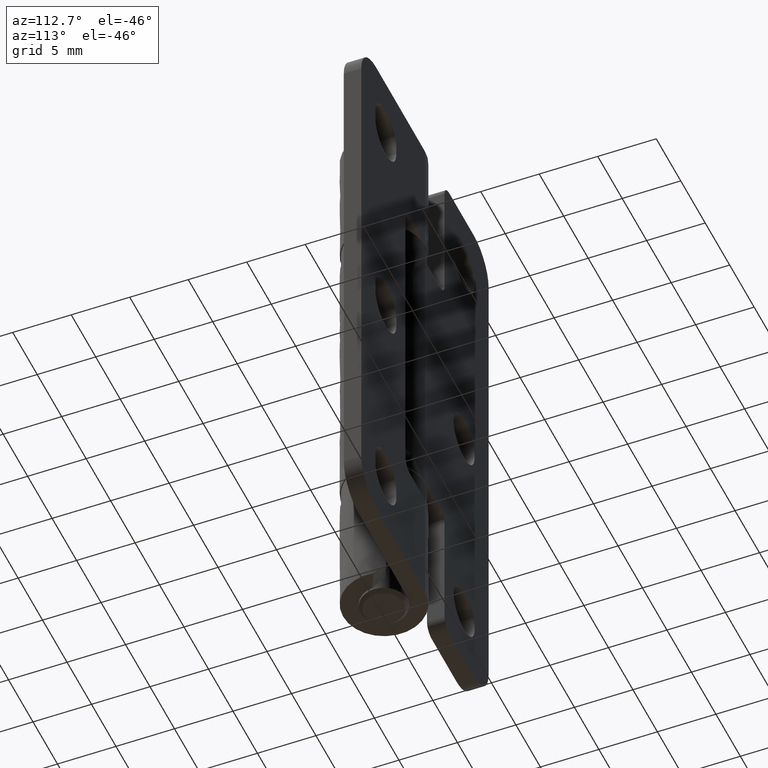
[diagram: clean part render]
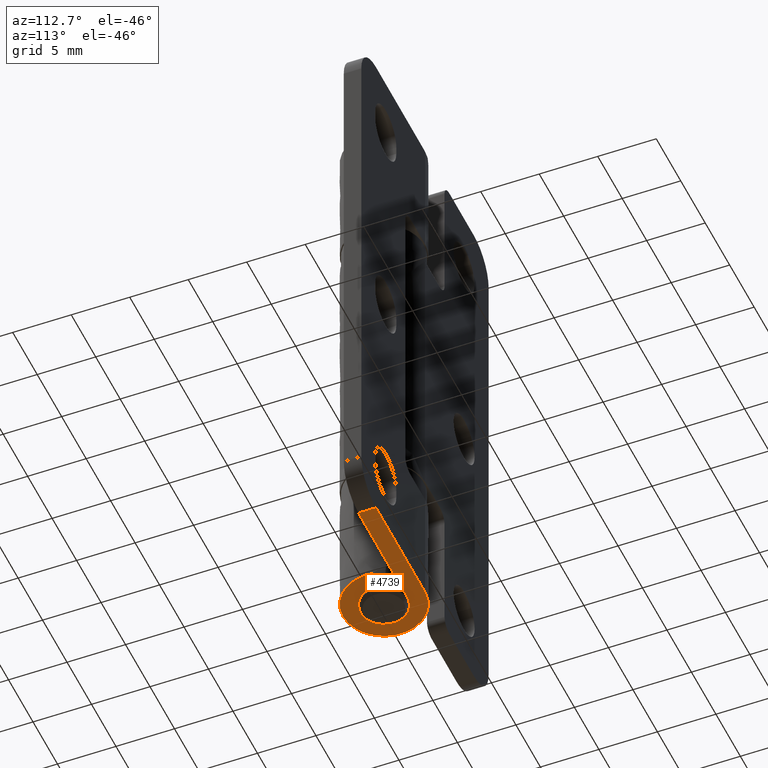
[diagram: same view with one face highlighted and labeled with its STEP entity id]
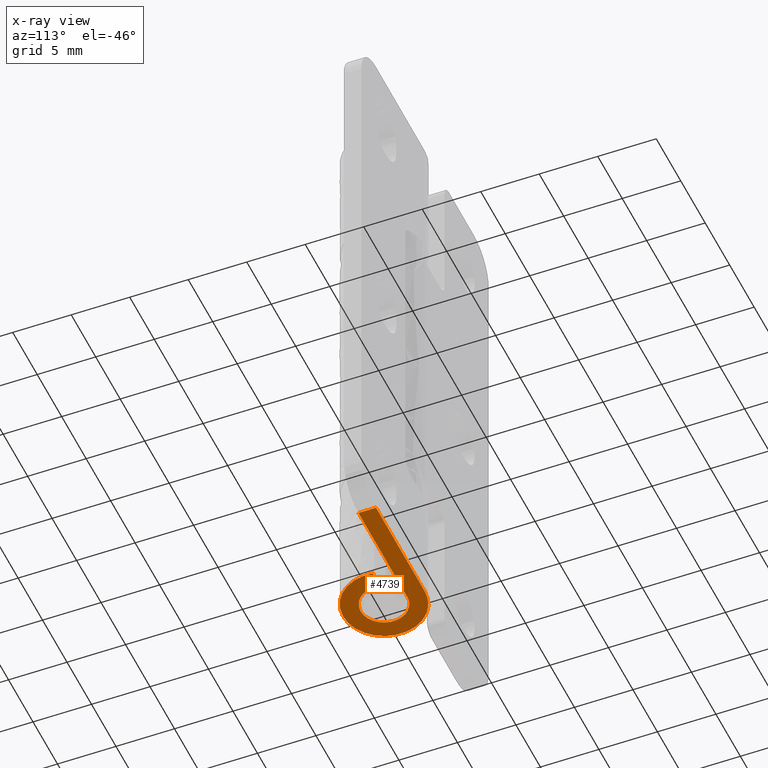
[diagram: x-ray of the same camera — body ghosted, the highlighted face saturated]
A machine part, auxiliary view. The second image highlights one B-rep face of the part: STEP entity #4739.
The next image is the same camera in x-ray: the body ghosted, the highlighted face saturated — about 0% of this face is hidden behind the body in this view.
In plain terms, the highlighted face is a freeform B-spline surface patch.
Its self-contained STEP definition (entity closure, byte-faithful):
#3337=CARTESIAN_POINT('',(1.993493021443350,-0.161200413946954,1.324573E-016));
#3338=VERTEX_POINT('',#3337);
#3352=CARTESIAN_POINT('',(-1.749028E-014,2.0,0.0));
#3353=VERTEX_POINT('',#3352);
#3354=CARTESIAN_POINT('',(1.993493021443350,-0.161200413946954,1.324573E-016));
#3355=CARTESIAN_POINT('',(1.976135222307957,-0.377629924923367,-2.726215E-017));
#3356=CARTESIAN_POINT('',(1.890444902275574,-0.721536117117821,-3.339839E-018));
#3357=CARTESIAN_POINT('',(1.667215679502189,-1.124452440563273,3.580788E-018));
#3358=CARTESIAN_POINT('',(1.398676903287454,-1.452039177265172,-1.948723E-018));
#3359=CARTESIAN_POINT('',(1.073472438061533,-1.708030544118265,5.732661E-019));
#3360=CARTESIAN_POINT('',(0.657199012410145,-1.904361218852017,-9.157117E-020));
#3361=CARTESIAN_POINT('',(0.279022339430511,-1.993960968480105,1.786594E-022));
#3362=CARTESIAN_POINT('',(-0.144294195350417,-2.008207602116021,-2.132797E-023));
#3363=CARTESIAN_POINT('',(-0.599540660287872,-1.932306529414181,4.069645E-024));
#3364=CARTESIAN_POINT('',(-1.032041610872760,-1.735128007649466,-1.124534E-024));
#3365=CARTESIAN_POINT('',(-1.413893534610438,-1.436956576204053,1.866402E-025));
#3366=CARTESIAN_POINT('',(-1.716059276097598,-1.071491382035277,0.0));
#3367=CARTESIAN_POINT('',(-1.923383864427478,-0.617478354732427,0.0));
#3368=CARTESIAN_POINT('',(-2.014476006523992,-0.128430085497338,0.0));
#3369=CARTESIAN_POINT('',(-1.992776372102775,0.296553579856952,0.0));
#3370=CARTESIAN_POINT('',(-1.896612668493980,0.659163539458694,0.0));
#3371=CARTESIAN_POINT('',(-1.741398453007903,1.013665846706586,0.0));
#3372=CARTESIAN_POINT('',(-1.486441536390275,1.370107992753157,0.0));
#3373=CARTESIAN_POINT('',(-1.141700813246849,1.658387548783953,0.0));
#3374=CARTESIAN_POINT('',(-0.801381748958875,1.843207710432672,0.0));
#3375=CARTESIAN_POINT('',(-0.434195691488101,1.967201411310665,0.0));
#3376=CARTESIAN_POINT('',(-0.156798547020014,2.000037352359102,0.0));
#3377=CARTESIAN_POINT('',(-1.749028E-014,2.0,0.0));
#3378=B_SPLINE_CURVE_WITH_KNOTS('',3,(#3354,#3355,#3356,#3357,#3358,#3359,#3360,#3361,#3362,#3363,#3364,#3365,#3366,#3367,#3368,#3369,#3370,#3371,#3372,#3373,#3374,#3375,#3376,#3377),.UNSPECIFIED.,.F.,.U.,(4,1,1,1,1,1,1,1,1,1,1,1,1,1,1,1,1,1,1,1,1,4),(0.000000055758294,0.651319038369982,1.049382788375864,1.375052413556248,1.917852299241693,2.279712852124865,2.750113541665150,3.075811676044214,3.546178149706186,4.125154620143288,4.487019649067317,4.993629994163819,5.536429717791904,5.970665991963557,6.477230836429859,6.802888938301564,7.092377184522201,7.635174042080907,8.105590727226236,8.431271255077457,8.793138209604798,9.263528828274044),.UNSPECIFIED.);
#3379=EDGE_CURVE('',#3338,#3353,#3378,.T.);
#3571=CARTESIAN_POINT('',(9.999999999999089,2.000000000000090,-2.775558E-014));
#3572=VERTEX_POINT('',#3571);
#3573=CARTESIAN_POINT('',(9.999999999999089,2.000000000000090,-2.775558E-014));
#3574=CARTESIAN_POINT('',(-1.749028E-014,2.0,0.0));
#3575=QUASI_UNIFORM_CURVE('',1,(#3573,#3574),.UNSPECIFIED.,.F.,.U.);
#3576=EDGE_CURVE('',#3572,#3353,#3575,.T.);
#3983=CARTESIAN_POINT('',(3.459029062228035,0.533964368344842,4.654752E-017));
#3984=VERTEX_POINT('',#3983);
#3998=CARTESIAN_POINT('',(1.993493021443350,-0.161200413946954,1.324573E-016));
#3999=CARTESIAN_POINT('',(3.459029062228035,0.533964368344842,4.654752E-017));
#4000=QUASI_UNIFORM_CURVE('',1,(#3998,#3999),.UNSPECIFIED.,.F.,.U.);
#4001=EDGE_CURVE('',#3338,#3984,#4000,.T.);
#4659=CARTESIAN_POINT('',(9.999999999999089,3.500000000000090,-2.775558E-014));
#4660=VERTEX_POINT('',#4659);
#4680=CARTESIAN_POINT('',(9.999999999999089,3.500000000000090,-2.775558E-014));
#4681=CARTESIAN_POINT('',(9.999999999999089,2.000000000000090,-2.775558E-014));
#4682=QUASI_UNIFORM_CURVE('',1,(#4680,#4681),.UNSPECIFIED.,.F.,.U.);
#4683=EDGE_CURVE('',#4660,#3572,#4682,.T.);
#4688=CARTESIAN_POINT('',(-4.174324705637877,-3.849649031920148,-2.775558E-014));
#4689=CARTESIAN_POINT('',(10.674325322633230,-3.849649031920148,-2.775558E-014));
#4690=CARTESIAN_POINT('',(-4.174324705637877,3.849650128758380,-2.775558E-014));
#4691=CARTESIAN_POINT('',(10.674325322633230,3.849650128758380,-2.775558E-014));
#4692=B_SPLINE_SURFACE_WITH_KNOTS('',1,1,((#4688,#4690),(#4689,#4691)),.UNSPECIFIED.,.F.,.F.,.U.,(2,2),(2,2),(0.0,14.848650028271109),(0.0,7.699299160678528),.UNSPECIFIED.);
#4693=ORIENTED_EDGE('',*,*,#3379,.F.);
#4694=ORIENTED_EDGE('',*,*,#4001,.T.);
#4695=CARTESIAN_POINT('',(0.0,3.500000000000000,0.0));
#4696=VERTEX_POINT('',#4695);
#4697=CARTESIAN_POINT('',(3.459029062228035,0.533964368344842,4.654752E-017));
#4698=CARTESIAN_POINT('',(3.513314702729347,0.183345802430372,3.976914E-017));
#4699=CARTESIAN_POINT('',(3.513709225715964,-0.399837781451843,2.938472E-017));
#4700=CARTESIAN_POINT('',(3.337354554050985,-1.101943507814673,1.863315E-017));
#4701=CARTESIAN_POINT('',(3.110960013097823,-1.633352310661154,1.141561E-017));
#4702=CARTESIAN_POINT('',(2.852929791417397,-2.049686109565089,6.558748E-018));
#4703=CARTESIAN_POINT('',(2.508659262193366,-2.456640813309672,2.741830E-018));
#4704=CARTESIAN_POINT('',(2.053199661838962,-2.865091934324144,-1.340408E-019));
#4705=CARTESIAN_POINT('',(1.454387468027717,-3.213163608102289,3.589435E-020));
#4706=CARTESIAN_POINT('',(0.808253624765949,-3.422049630935150,-1.462622E-020));
#4707=CARTESIAN_POINT('',(0.170255000474212,-3.516191203546889,7.513381E-021));
#4708=CARTESIAN_POINT('',(-0.487295206476264,-3.490638993386058,-2.054720E-021));
#4709=CARTESIAN_POINT('',(-1.135850598326244,-3.329707435875349,2.572829E-022));
#4710=CARTESIAN_POINT('',(-1.765852628841543,-3.049174426175938,-4.272343E-023));
#4711=CARTESIAN_POINT('',(-2.293456902094512,-2.673703452760272,1.339857E-023));
#4712=CARTESIAN_POINT('',(-2.705940984131090,-2.237379643426788,-2.495499E-024));
#4713=CARTESIAN_POINT('',(-3.015604531543664,-1.803334248845148,0.0));
#4714=CARTESIAN_POINT('',(-3.256459586402724,-1.326358140864146,0.0));
#4715=CARTESIAN_POINT('',(-3.434644425153663,-0.752977047598317,0.0));
#4716=CARTESIAN_POINT('',(-3.506558104935231,-0.223494318279356,0.0));
#4717=CARTESIAN_POINT('',(-3.497642263922220,0.298512181332632,0.0));
#4718=CARTESIAN_POINT('',(-3.422854118042316,0.793062690192478,0.0));
#4719=CARTESIAN_POINT('',(-3.247456105689467,1.355886735904449,0.0));
#4720=CARTESIAN_POINT('',(-2.983688679091963,1.859201929594260,0.0));
#4721=CARTESIAN_POINT('',(-2.616743409179329,2.347677066360226,0.0));
#4722=CARTESIAN_POINT('',(-2.118450308154782,2.826158355166747,0.0));
#4723=CARTESIAN_POINT('',(-1.443769630148239,3.223457170045881,0.0));
#4724=CARTESIAN_POINT('',(-0.698451656601923,3.453363644907784,0.0));
#4725=CARTESIAN_POINT('',(-0.232819700899280,3.500024842918125,0.0));
#4726=CARTESIAN_POINT('',(0.0,3.500000000000000,0.0));
#4727=B_SPLINE_CURVE_WITH_KNOTS('',3,(#4697,#4698,#4699,#4700,#4701,#4702,#4703,#4704,#4705,#4706,#4707,#4708,#4709,#4710,#4711,#4712,#4713,#4714,#4715,#4716,#4717,#4718,#4719,#4720,#4721,#4722,#4723,#4724,#4725,#4726),.UNSPECIFIED.,.F.,.U.,(4,1,1,1,1,1,1,1,1,1,1,1,1,1,1,1,1,1,1,1,1,1,1,1,1,1,1,4),(0.000000208689773,1.064336539613880,1.729556574902295,2.161947660646669,2.793905656409375,3.193033592296459,3.758485684552852,4.623232946592854,5.255174748556792,5.787363633332552,6.552363425694484,7.217587575089146,7.783008002481761,8.614517523803832,9.146693805070166,9.579081656847517,10.211032146715500,10.743210701185729,11.375165192571419,11.807561351390520,12.306471489413260,12.871887997712239,13.570362461236330,14.002756696060221,14.701230428123200,15.632535666796310,16.331024953463920,17.029483206974650),.UNSPECIFIED.);
#4728=EDGE_CURVE('',#3984,#4696,#4727,.T.);
#4729=ORIENTED_EDGE('',*,*,#4728,.T.);
#4730=CARTESIAN_POINT('',(0.0,3.500000000000000,0.0));
#4731=CARTESIAN_POINT('',(9.999999999999089,3.500000000000090,-2.775558E-014));
#4732=QUASI_UNIFORM_CURVE('',1,(#4730,#4731),.UNSPECIFIED.,.F.,.U.);
#4733=EDGE_CURVE('',#4696,#4660,#4732,.T.);
#4734=ORIENTED_EDGE('',*,*,#4733,.T.);
#4735=ORIENTED_EDGE('',*,*,#4683,.T.);
#4736=ORIENTED_EDGE('',*,*,#3576,.T.);
#4737=EDGE_LOOP('',(#4693,#4694,#4729,#4734,#4735,#4736));
#4738=FACE_OUTER_BOUND('',#4737,.T.);
#4739=ADVANCED_FACE('',(#4738),#4692,.F.);